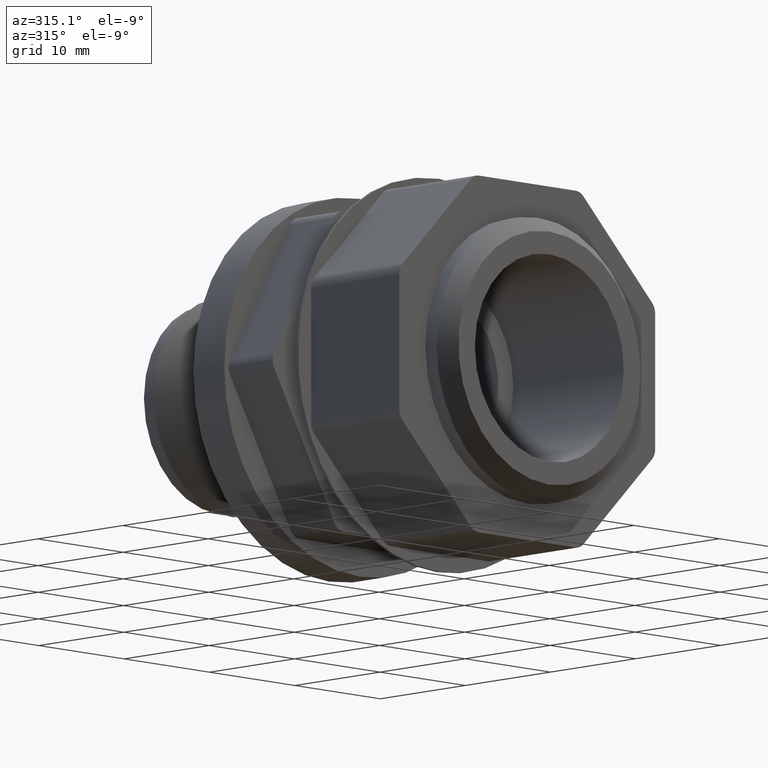
[diagram: clean part render]
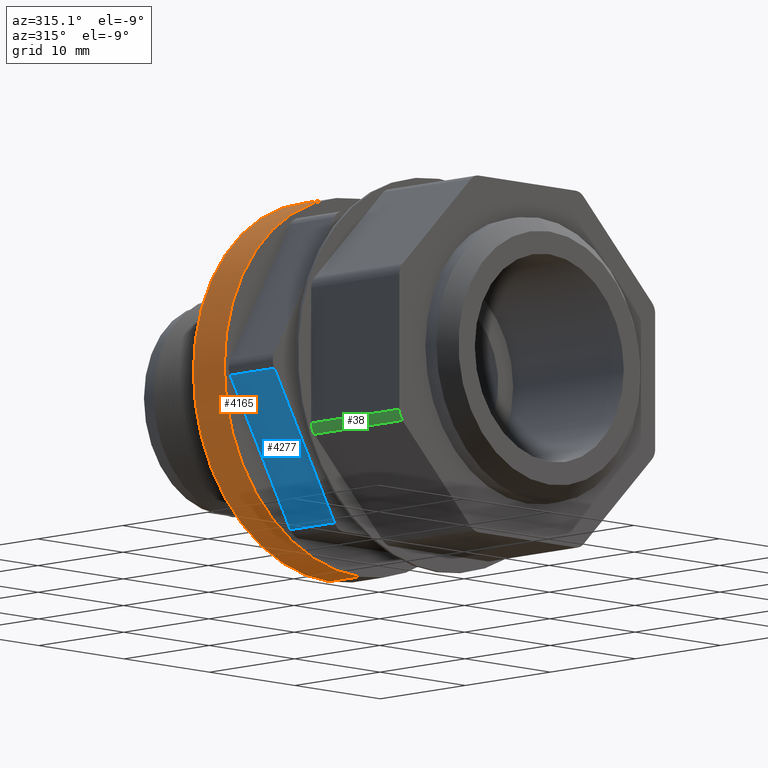
[diagram: same view with three faces highlighted in distinct colors, each labeled with its STEP entity id]
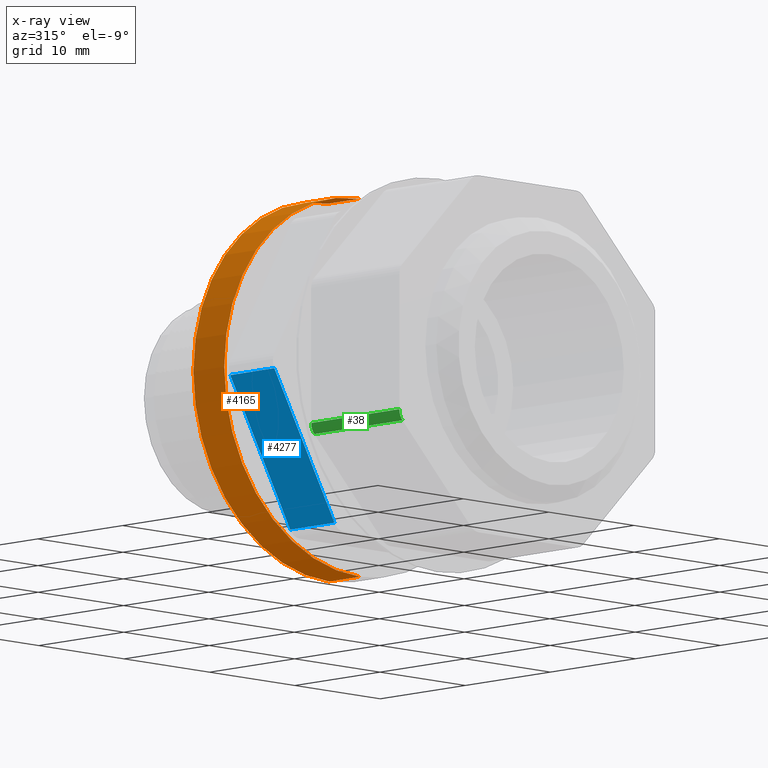
[diagram: x-ray of the same camera — body ghosted, the three highlighted faces saturated]
A machine part, auxiliary view with three faces highlighted in distinct colors.
The next image is the same camera in x-ray (body ghosted, the three faces saturated) — at least one of them is partly hidden behind the body in this view.
Their STEP definitions:

[orange] entity #4165 — the highlighted cylindrical surface (partial cylindrical patch) has radius 15.875 mm, axis along (-0, 1, -0).
#2168 = CARTESIAN_POINT ( 'NONE',  ( 7.654042494670955400E-017, 0.8770000000000001100, -0.6249999999999998900 ) ) ;
#2531 = VERTEX_POINT ( 'NONE', #2168 ) ;
#2867 = DIRECTION ( 'NONE',  ( -0.0000000000000000000, 1.000000000000000000, -0.0000000000000000000 ) ) ;
#2868 = VECTOR ( 'NONE', #2867, 39.37007874015748100 ) ;
#2869 = CARTESIAN_POINT ( 'NONE',  ( 7.654042494670955400E-017, 1.843561561718224600, -0.6249999999999998900 ) ) ;
#2870 = LINE ( 'NONE', #2869, #2868 ) ;
#2989 = DIRECTION ( 'NONE',  ( -0.0000000000000000000, 1.000000000000000000, -0.0000000000000000000 ) ) ;
#2990 = VECTOR ( 'NONE', #2989, 39.37007874015748100 ) ;
#2991 = CARTESIAN_POINT ( 'NONE',  ( 0.0000000000000000000, 1.843561561718224600, 0.6249999999999998900 ) ) ;
#2992 = LINE ( 'NONE', #2991, #2990 ) ;
#2993 = CARTESIAN_POINT ( 'NONE',  ( 0.0000000000000000000, 1.020000000000000000, 0.6249999999999998900 ) ) ;
#2999 = CARTESIAN_POINT ( 'NONE',  ( 7.654042494670955400E-017, 1.020000000000000000, -0.6249999999999998900 ) ) ;
#3091 = DIRECTION ( 'NONE',  ( 0.0000000000000000000, 0.0000000000000000000, 1.000000000000000000 ) ) ;
#3092 = DIRECTION ( 'NONE',  ( -0.0000000000000000000, 1.000000000000000000, -0.0000000000000000000 ) ) ;
#3093 = CARTESIAN_POINT ( 'NONE',  ( 0.0000000000000000000, 1.020000000000000000, 0.0000000000000000000 ) ) ;
#3094 = AXIS2_PLACEMENT_3D ( 'NONE', #3093, #3092, #3091 ) ;
#3095 = CIRCLE ( 'NONE', #3094, 0.6249999999999998900 ) ;
#3096 = DIRECTION ( 'NONE',  ( 0.0000000000000000000, 0.0000000000000000000, -1.000000000000000000 ) ) ;
#3097 = DIRECTION ( 'NONE',  ( -0.0000000000000000000, 1.000000000000000000, -0.0000000000000000000 ) ) ;
#3098 = CARTESIAN_POINT ( 'NONE',  ( 0.0000000000000000000, 0.8770000000000001100, 0.0000000000000000000 ) ) ;
#3099 = AXIS2_PLACEMENT_3D ( 'NONE', #3098, #3097, #3096 ) ;
#3100 = DIRECTION ( 'NONE',  ( 0.0000000000000000000, 0.0000000000000000000, 1.000000000000000000 ) ) ;
#3101 = DIRECTION ( 'NONE',  ( -0.0000000000000000000, 1.000000000000000000, -0.0000000000000000000 ) ) ;
#3102 = CARTESIAN_POINT ( 'NONE',  ( 0.0000000000000000000, 1.843561561718224600, 0.0000000000000000000 ) ) ;
#3103 = AXIS2_PLACEMENT_3D ( 'NONE', #3102, #3101, #3100 ) ;
#3104 = CIRCLE ( 'NONE', #3099, 0.6249999999999998900 ) ;
#3105 = CYLINDRICAL_SURFACE ( 'NONE', #3103, 0.6249999999999998900 ) ;
#3106 = FACE_OUTER_BOUND ( 'NONE', #4166, .T. ) ;
#3525 = CARTESIAN_POINT ( 'NONE',  ( 0.0000000000000000000, 0.8770000000000001100, 0.6249999999999998900 ) ) ;
#4061 = EDGE_CURVE ( 'NONE', #2531, #4121, #2870, .T. ) ;
#4121 = VERTEX_POINT ( 'NONE', #2999 ) ;
#4124 = VERTEX_POINT ( 'NONE', #2993 ) ;
#4126 = EDGE_CURVE ( 'NONE', #4467, #4124, #2992, .T. ) ;
#4165 = ADVANCED_FACE ( 'NONE', ( #3106 ), #3105, .T. ) ;
#4166 = EDGE_LOOP ( 'NONE', ( #4167, #4168, #4170, #4171 ) ) ;
#4167 = ORIENTED_EDGE ( 'NONE', *, *, #4061, .F. ) ;
#4168 = ORIENTED_EDGE ( 'NONE', *, *, #4169, .T. ) ;
#4169 = EDGE_CURVE ( 'NONE', #2531, #4467, #3104, .T. ) ;
#4170 = ORIENTED_EDGE ( 'NONE', *, *, #4126, .T. ) ;
#4171 = ORIENTED_EDGE ( 'NONE', *, *, #4172, .F. ) ;
#4172 = EDGE_CURVE ( 'NONE', #4121, #4124, #3095, .T. ) ;
#4467 = VERTEX_POINT ( 'NONE', #3525 ) ;

[blue] entity #4277 — the highlighted planar face has unit normal (-0.866, 0, -0.5).
#3000 = CARTESIAN_POINT ( 'NONE',  ( -0.3204293994002426800, 0.6730000000000000400, -0.5049999999999997800 ) ) ;
#3001 = DIRECTION ( 'NONE',  ( 0.4999999999999996100, 0.0000000000000000000, -0.8660254037844388200 ) ) ;
#3002 = VECTOR ( 'NONE', #3001, 39.37007874015748100 ) ;
#3003 = CARTESIAN_POINT ( 'NONE',  ( -0.6119912853410033300, 0.6730000000000000400, 1.376206665772387200E-016 ) ) ;
#3004 = LINE ( 'NONE', #3003, #3002 ) ;
#3005 = CARTESIAN_POINT ( 'NONE',  ( -0.5975575286112626600, 0.6730000000000000400, -0.02499999999999983500 ) ) ;
#3209 = DIRECTION ( 'NONE',  ( 0.4999999999999996100, 0.0000000000000000000, -0.8660254037844388200 ) ) ;
#3210 = VECTOR ( 'NONE', #3209, 39.37007874015748100 ) ;
#3211 = CARTESIAN_POINT ( 'NONE',  ( -0.6119912853410033300, 0.8770000000000001100, 1.376206665772387200E-016 ) ) ;
#3212 = LINE ( 'NONE', #3211, #3210 ) ;
#3213 = CARTESIAN_POINT ( 'NONE',  ( -0.3204293994002426800, 0.8770000000000001100, -0.5049999999999997800 ) ) ;
#3271 = CARTESIAN_POINT ( 'NONE',  ( -0.5975575286112626600, 0.8770000000000001100, -0.02499999999999983500 ) ) ;
#3286 = DIRECTION ( 'NONE',  ( -0.0000000000000000000, 1.000000000000000000, -0.0000000000000000000 ) ) ;
#3287 = VECTOR ( 'NONE', #3286, 39.37007874015748100 ) ;
#3288 = CARTESIAN_POINT ( 'NONE',  ( -0.5975575286112626600, 0.8770000000000001100, -0.02499999999999983800 ) ) ;
#3289 = DIRECTION ( 'NONE',  ( -0.4999999999999996100, 0.0000000000000000000, 0.8660254037844388200 ) ) ;
#3290 = DIRECTION ( 'NONE',  ( -0.8660254037844388200, 0.0000000000000000000, -0.4999999999999996100 ) ) ;
#3291 = CARTESIAN_POINT ( 'NONE',  ( -0.6119912853410033300, 0.8770000000000001100, 1.376206665772387200E-016 ) ) ;
#3292 = AXIS2_PLACEMENT_3D ( 'NONE', #3291, #3290, #3289 ) ;
#3293 = PLANE ( 'NONE',  #3292 ) ;
#3294 = LINE ( 'NONE', #3288, #3287 ) ;
#3295 = FACE_OUTER_BOUND ( 'NONE', #4278, .T. ) ;
#3336 = CARTESIAN_POINT ( 'NONE',  ( -0.3204293994002426800, 0.8770000000000001100, -0.5049999999999997800 ) ) ;
#3337 = LINE ( 'NONE', #3336, #3398 ) ;
#3397 = DIRECTION ( 'NONE',  ( 0.0000000000000000000, -1.000000000000000000, 0.0000000000000000000 ) ) ;
#3398 = VECTOR ( 'NONE', #3397, 39.37007874015748100 ) ;
#4117 = VERTEX_POINT ( 'NONE', #3005 ) ;
#4119 = EDGE_CURVE ( 'NONE', #4117, #4120, #3004, .T. ) ;
#4120 = VERTEX_POINT ( 'NONE', #3000 ) ;
#4247 = VERTEX_POINT ( 'NONE', #3213 ) ;
#4249 = EDGE_CURVE ( 'NONE', #4250, #4247, #3212, .T. ) ;
#4250 = VERTEX_POINT ( 'NONE', #3271 ) ;
#4277 = ADVANCED_FACE ( 'NONE', ( #3295 ), #3293, .T. ) ;
#4278 = EDGE_LOOP ( 'NONE', ( #4279, #4280, #4282, #4333 ) ) ;
#4279 = ORIENTED_EDGE ( 'NONE', *, *, #4119, .F. ) ;
#4280 = ORIENTED_EDGE ( 'NONE', *, *, #4281, .T. ) ;
#4281 = EDGE_CURVE ( 'NONE', #4117, #4250, #3294, .T. ) ;
#4282 = ORIENTED_EDGE ( 'NONE', *, *, #4249, .T. ) ;
#4333 = ORIENTED_EDGE ( 'NONE', *, *, #4334, .T. ) ;
#4334 = EDGE_CURVE ( 'NONE', #4247, #4120, #3337, .T. ) ;

[green] entity #38 — the highlighted cylindrical surface (edge-blend (fillet) strip) has radius 1.27 mm, axis along (0, -1, 0).
#17 = ORIENTED_EDGE ( 'NONE', *, *, #3741, .F. ) ;
#21 = ORIENTED_EDGE ( 'NONE', *, *, #687, .F. ) ;
#22 = ORIENTED_EDGE ( 'NONE', *, *, #496, .F. ) ;
#23 = ORIENTED_EDGE ( 'NONE', *, *, #590, .F. ) ;
#27 = EDGE_LOOP ( 'NONE', ( #23, #21, #22, #17 ) ) ;
#38 = ADVANCED_FACE ( 'NONE', ( #830 ), #825, .T. ) ;
#411 = VERTEX_POINT ( 'NONE', #1449 ) ;
#414 = VERTEX_POINT ( 'NONE', #1440 ) ;
#496 = EDGE_CURVE ( 'NONE', #414, #411, #1628, .T. ) ;
#590 = EDGE_CURVE ( 'NONE', #615, #591, #1775, .T. ) ;
#591 = VERTEX_POINT ( 'NONE', #1770 ) ;
#615 = VERTEX_POINT ( 'NONE', #1851 ) ;
#687 = EDGE_CURVE ( 'NONE', #411, #615, #1940, .T. ) ;
#820 = DIRECTION ( 'NONE',  ( 0.0000000000000000000, 0.0000000000000000000, -1.000000000000000000 ) ) ;
#821 = DIRECTION ( 'NONE',  ( 0.0000000000000000000, -1.000000000000000000, 0.0000000000000000000 ) ) ;
#822 = CARTESIAN_POINT ( 'NONE',  ( -0.5399999999999999200, 0.5100000000000000100, -0.2236753236814714700 ) ) ;
#823 = AXIS2_PLACEMENT_3D ( 'NONE', #822, #821, #820 ) ;
#825 = CYLINDRICAL_SURFACE ( 'NONE', #823, 0.05000000000000001000 ) ;
#830 = FACE_OUTER_BOUND ( 'NONE', #27, .T. ) ;
#1440 = CARTESIAN_POINT ( 'NONE',  ( -0.5899999999999999700, 0.1019999999999999900, -0.2236753236814714700 ) ) ;
#1449 = CARTESIAN_POINT ( 'NONE',  ( -0.5753553390593273400, 0.1019999999999999900, -0.2590306627407988900 ) ) ;
#1624 = DIRECTION ( 'NONE',  ( 0.0000000000000000000, 0.0000000000000000000, -1.000000000000000000 ) ) ;
#1625 = DIRECTION ( 'NONE',  ( 0.0000000000000000000, -1.000000000000000000, 0.0000000000000000000 ) ) ;
#1626 = CARTESIAN_POINT ( 'NONE',  ( -0.5399999999999999200, 0.1020000000000000400, -0.2236753236814714700 ) ) ;
#1627 = AXIS2_PLACEMENT_3D ( 'NONE', #1626, #1625, #1624 ) ;
#1628 = CIRCLE ( 'NONE', #1627, 0.05000000000000001000 ) ;
#1770 = CARTESIAN_POINT ( 'NONE',  ( -0.5899999999999999700, 0.5100000000000000100, -0.2236753236814714700 ) ) ;
#1771 = DIRECTION ( 'NONE',  ( 1.365923996832131400E-015, 0.0000000000000000000, -1.000000000000000000 ) ) ;
#1772 = DIRECTION ( 'NONE',  ( -0.0000000000000000000, 1.000000000000000000, -0.0000000000000000000 ) ) ;
#1773 = CARTESIAN_POINT ( 'NONE',  ( -0.5399999999999999200, 0.5100000000000000100, -0.2236753236814714700 ) ) ;
#1774 = AXIS2_PLACEMENT_3D ( 'NONE', #1773, #1772, #1771 ) ;
#1775 = CIRCLE ( 'NONE', #1774, 0.05000000000000001000 ) ;
#1851 = CARTESIAN_POINT ( 'NONE',  ( -0.5753553390593273400, 0.5100000000000000100, -0.2590306627407988300 ) ) ;
#1932 = DIRECTION ( 'NONE',  ( -0.0000000000000000000, 1.000000000000000000, -0.0000000000000000000 ) ) ;
#1933 = VECTOR ( 'NONE', #1932, 39.37007874015748100 ) ;
#1934 = CARTESIAN_POINT ( 'NONE',  ( -0.5753553390593273400, 0.5100000000000000100, -0.2590306627407988300 ) ) ;
#1940 = LINE ( 'NONE', #1934, #1933 ) ;
#2253 = DIRECTION ( 'NONE',  ( 0.0000000000000000000, -1.000000000000000000, 0.0000000000000000000 ) ) ;
#2254 = VECTOR ( 'NONE', #2253, 39.37007874015748100 ) ;
#2255 = CARTESIAN_POINT ( 'NONE',  ( -0.5899999999999999700, 0.5100000000000000100, -0.2236753236814714700 ) ) ;
#2256 = LINE ( 'NONE', #2255, #2254 ) ;
#3741 = EDGE_CURVE ( 'NONE', #591, #414, #2256, .T. ) ;